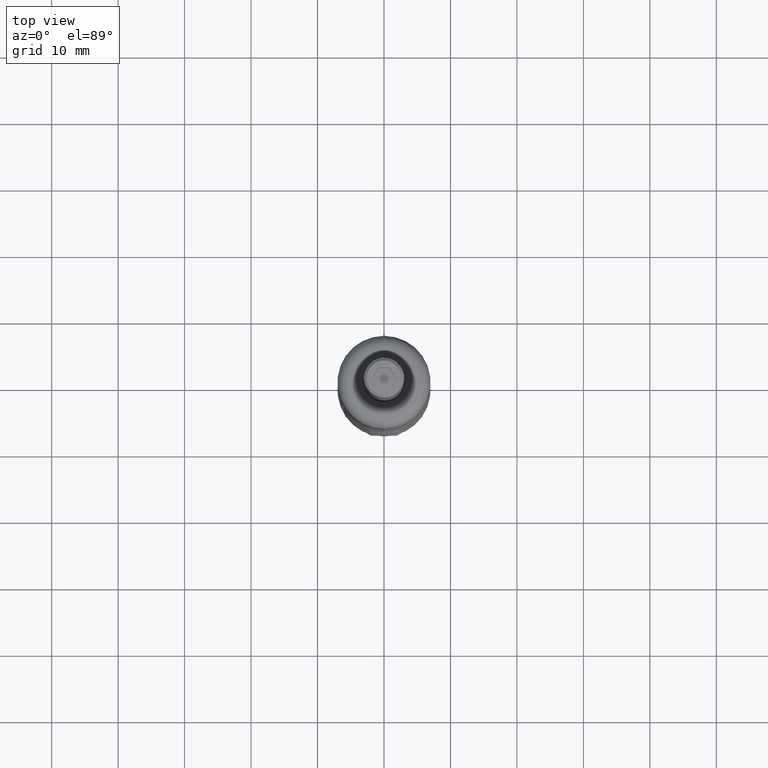
[diagram: clean part render]
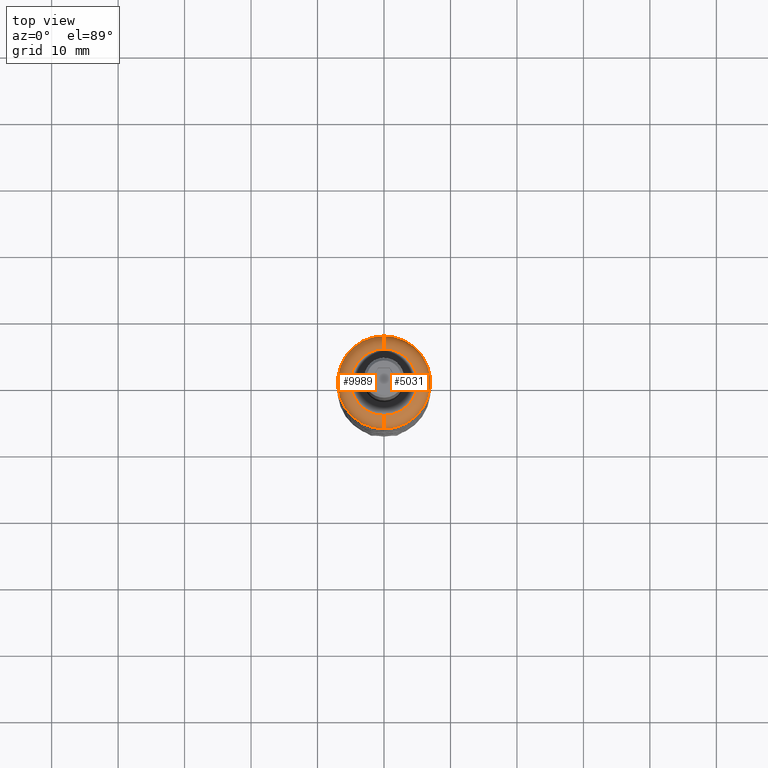
[diagram: same view with one multi-face feature highlighted, each face labeled with its STEP entity id]
A machine part, top view. The highlighted faces form ONE feature: a constant-radius fillet chain: 2 tangent blend faces with common blend radius 2 mm. The faces share edges in the B-rep.
Their STEP definitions:
[1] entity #5031 (Torus):
#616 = DIRECTION ( 'NONE',  ( -1.000000000000000000, 0.0000000000000000000, -0.0000000000000000000 ) ) ;
#764 = DIRECTION ( 'NONE',  ( 0.0000000000000000000, 1.000000000000000000, 0.0000000000000000000 ) ) ;
#1880 = AXIS2_PLACEMENT_3D ( 'NONE', #3312, #4725, #764 ) ;
#2326 = DIRECTION ( 'NONE',  ( -0.0000000000000000000, 5.987083850887820200E-017, 1.000000000000000000 ) ) ;
#2354 = CARTESIAN_POINT ( 'NONE',  ( 0.0000000000000000000, -1.197416770177568700E-016, 33.00000000000000000 ) ) ;
#2380 = DIRECTION ( 'NONE',  ( -1.224646799147353200E-016, 1.000000000000000000, 0.0000000000000000000 ) ) ;
#3109 = CARTESIAN_POINT ( 'NONE',  ( 0.0000000000000000000, 4.999999999999990200, 33.00000000000000000 ) ) ;
#3312 = CARTESIAN_POINT ( 'NONE',  ( 0.0000000000000000000, -1.197416770177569200E-016, 33.00000000000000000 ) ) ;
#3671 = DIRECTION ( 'NONE',  ( 0.0000000000000000000, -5.987083850887820200E-017, -1.000000000000000000 ) ) ;
#4671 = AXIS2_PLACEMENT_3D ( 'NONE', #3109, #616, #8209 ) ;
#4725 = DIRECTION ( 'NONE',  ( 0.0000000000000000000, -5.987083850887820200E-017, -1.000000000000000000 ) ) ;
#4802 = EDGE_CURVE ( 'NONE', #6216, #11974, #8701, .T. ) ;
#4899 = DIRECTION ( 'NONE',  ( 0.0000000000000000000, 1.000000000000000000, 0.0000000000000000000 ) ) ;
#4986 = DIRECTION ( 'NONE',  ( 0.0000000000000000000, 1.000000000000000000, -5.987083850887820200E-017 ) ) ;
#5022 = CARTESIAN_POINT ( 'NONE',  ( 0.0000000000000000000, -3.370377402677662700E-031, 35.00000000000000000 ) ) ;
#5031 = ADVANCED_FACE ( 'NONE', ( #7893 ), #8906, .T. ) ;
#5290 = EDGE_CURVE ( 'NONE', #16388, #6216, #6957, .T. ) ;
#5893 = AXIS2_PLACEMENT_3D ( 'NONE', #2354, #3671, #4986 ) ;
#6216 = VERTEX_POINT ( 'NONE', #14976 ) ;
#6957 = CIRCLE ( 'NONE', #13725, 4.999999999999990200 ) ;
#7538 = CIRCLE ( 'NONE', #12682, 2.000000000000000000 ) ;
#7573 = EDGE_CURVE ( 'NONE', #16388, #9572, #7538, .T. ) ;
#7603 = CARTESIAN_POINT ( 'NONE',  ( 7.347880794884107900E-016, -4.999999999999990200, 35.00000000000000000 ) ) ;
#7850 = ORIENTED_EDGE ( 'NONE', *, *, #5290, .F. ) ;
#7893 = FACE_OUTER_BOUND ( 'NONE', #12598, .T. ) ;
#8209 = DIRECTION ( 'NONE',  ( 0.0000000000000000000, 0.0000000000000000000, 1.000000000000000000 ) ) ;
#8701 = CIRCLE ( 'NONE', #4671, 2.000000000000001800 ) ;
#8906 = TOROIDAL_SURFACE ( 'NONE', #5893, 4.999999999999990200, 2.000000000000000000 ) ;
#9572 = VERTEX_POINT ( 'NONE', #15982 ) ;
#10041 = CARTESIAN_POINT ( 'NONE',  ( 8.572527594031463300E-016, 6.999999999999991100, 33.00000000000000000 ) ) ;
#10882 = ORIENTED_EDGE ( 'NONE', *, *, #12703, .F. ) ;
#11014 = CIRCLE ( 'NONE', #1880, 6.999999999999990200 ) ;
#11448 = DIRECTION ( 'NONE',  ( 1.000000000000000000, 1.224646799147353200E-016, -7.332063074216577800E-033 ) ) ;
#11974 = VERTEX_POINT ( 'NONE', #10041 ) ;
#11978 = ORIENTED_EDGE ( 'NONE', *, *, #7573, .T. ) ;
#12598 = EDGE_LOOP ( 'NONE', ( #7850, #11978, #10882, #16486 ) ) ;
#12682 = AXIS2_PLACEMENT_3D ( 'NONE', #12817, #11448, #2380 ) ;
#12703 = EDGE_CURVE ( 'NONE', #11974, #9572, #11014, .T. ) ;
#12817 = CARTESIAN_POINT ( 'NONE',  ( 6.123233995736754400E-016, -4.999999999999990200, 33.00000000000000000 ) ) ;
#13725 = AXIS2_PLACEMENT_3D ( 'NONE', #5022, #2326, #4899 ) ;
#14976 = CARTESIAN_POINT ( 'NONE',  ( 0.0000000000000000000, 4.999999999999990200, 35.00000000000000000 ) ) ;
#15982 = CARTESIAN_POINT ( 'NONE',  ( 0.0000000000000000000, -6.999999999999990200, 33.00000000000000000 ) ) ;
#16388 = VERTEX_POINT ( 'NONE', #7603 ) ;
#16486 = ORIENTED_EDGE ( 'NONE', *, *, #4802, .F. ) ;
[2] entity #9989 (Torus):
#616 = DIRECTION ( 'NONE',  ( -1.000000000000000000, 0.0000000000000000000, -0.0000000000000000000 ) ) ;
#1129 = TOROIDAL_SURFACE ( 'NONE', #3726, 4.999999999999990200, 2.000000000000000000 ) ;
#1214 = CARTESIAN_POINT ( 'NONE',  ( 0.0000000000000000000, -1.197416770177569200E-016, 33.00000000000000000 ) ) ;
#2113 = FACE_OUTER_BOUND ( 'NONE', #9699, .T. ) ;
#2380 = DIRECTION ( 'NONE',  ( -1.224646799147353200E-016, 1.000000000000000000, 0.0000000000000000000 ) ) ;
#3109 = CARTESIAN_POINT ( 'NONE',  ( 0.0000000000000000000, 4.999999999999990200, 33.00000000000000000 ) ) ;
#3726 = AXIS2_PLACEMENT_3D ( 'NONE', #5437, #9332, #10660 ) ;
#3787 = ORIENTED_EDGE ( 'NONE', *, *, #7573, .F. ) ;
#4129 = AXIS2_PLACEMENT_3D ( 'NONE', #1214, #10231, #7784 ) ;
#4671 = AXIS2_PLACEMENT_3D ( 'NONE', #3109, #616, #8209 ) ;
#4802 = EDGE_CURVE ( 'NONE', #6216, #11974, #8701, .T. ) ;
#5437 = CARTESIAN_POINT ( 'NONE',  ( 0.0000000000000000000, -1.197416770177568700E-016, 33.00000000000000000 ) ) ;
#6216 = VERTEX_POINT ( 'NONE', #14976 ) ;
#7538 = CIRCLE ( 'NONE', #12682, 2.000000000000000000 ) ;
#7573 = EDGE_CURVE ( 'NONE', #16388, #9572, #7538, .T. ) ;
#7603 = CARTESIAN_POINT ( 'NONE',  ( 7.347880794884107900E-016, -4.999999999999990200, 35.00000000000000000 ) ) ;
#7784 = DIRECTION ( 'NONE',  ( 0.0000000000000000000, 1.000000000000000000, 0.0000000000000000000 ) ) ;
#8209 = DIRECTION ( 'NONE',  ( 0.0000000000000000000, 0.0000000000000000000, 1.000000000000000000 ) ) ;
#8701 = CIRCLE ( 'NONE', #4671, 2.000000000000001800 ) ;
#8721 = CARTESIAN_POINT ( 'NONE',  ( 0.0000000000000000000, -3.370377402677662700E-031, 35.00000000000000000 ) ) ;
#8827 = EDGE_CURVE ( 'NONE', #9572, #11974, #12839, .T. ) ;
#9332 = DIRECTION ( 'NONE',  ( 0.0000000000000000000, -5.987083850887820200E-017, -1.000000000000000000 ) ) ;
#9572 = VERTEX_POINT ( 'NONE', #15982 ) ;
#9699 = EDGE_LOOP ( 'NONE', ( #3787, #15726, #11010, #10675 ) ) ;
#9989 = ADVANCED_FACE ( 'NONE', ( #2113 ), #1129, .T. ) ;
#10041 = CARTESIAN_POINT ( 'NONE',  ( 8.572527594031463300E-016, 6.999999999999991100, 33.00000000000000000 ) ) ;
#10231 = DIRECTION ( 'NONE',  ( 0.0000000000000000000, -5.987083850887820200E-017, -1.000000000000000000 ) ) ;
#10660 = DIRECTION ( 'NONE',  ( 0.0000000000000000000, 1.000000000000000000, -5.987083850887820200E-017 ) ) ;
#10675 = ORIENTED_EDGE ( 'NONE', *, *, #8827, .F. ) ;
#11010 = ORIENTED_EDGE ( 'NONE', *, *, #4802, .T. ) ;
#11448 = DIRECTION ( 'NONE',  ( 1.000000000000000000, 1.224646799147353200E-016, -7.332063074216577800E-033 ) ) ;
#11494 = AXIS2_PLACEMENT_3D ( 'NONE', #8721, #16718, #15169 ) ;
#11967 = EDGE_CURVE ( 'NONE', #6216, #16388, #13072, .T. ) ;
#11974 = VERTEX_POINT ( 'NONE', #10041 ) ;
#12682 = AXIS2_PLACEMENT_3D ( 'NONE', #12817, #11448, #2380 ) ;
#12817 = CARTESIAN_POINT ( 'NONE',  ( 6.123233995736754400E-016, -4.999999999999990200, 33.00000000000000000 ) ) ;
#12839 = CIRCLE ( 'NONE', #4129, 6.999999999999990200 ) ;
#13072 = CIRCLE ( 'NONE', #11494, 4.999999999999990200 ) ;
#14976 = CARTESIAN_POINT ( 'NONE',  ( 0.0000000000000000000, 4.999999999999990200, 35.00000000000000000 ) ) ;
#15169 = DIRECTION ( 'NONE',  ( 0.0000000000000000000, 1.000000000000000000, 0.0000000000000000000 ) ) ;
#15726 = ORIENTED_EDGE ( 'NONE', *, *, #11967, .F. ) ;
#15982 = CARTESIAN_POINT ( 'NONE',  ( 0.0000000000000000000, -6.999999999999990200, 33.00000000000000000 ) ) ;
#16388 = VERTEX_POINT ( 'NONE', #7603 ) ;
#16718 = DIRECTION ( 'NONE',  ( -0.0000000000000000000, 5.987083850887820200E-017, 1.000000000000000000 ) ) ;